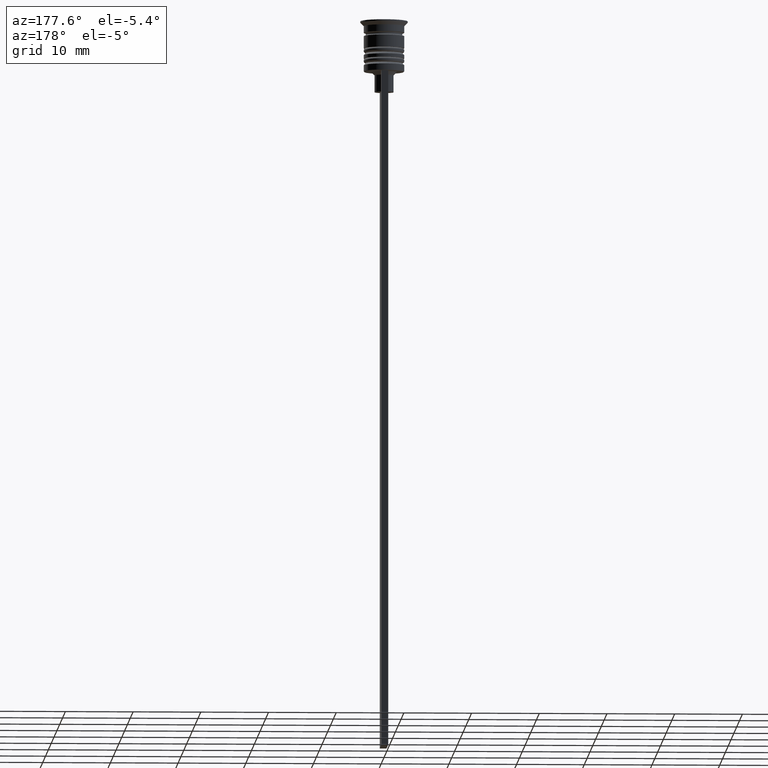
[diagram: clean part render]
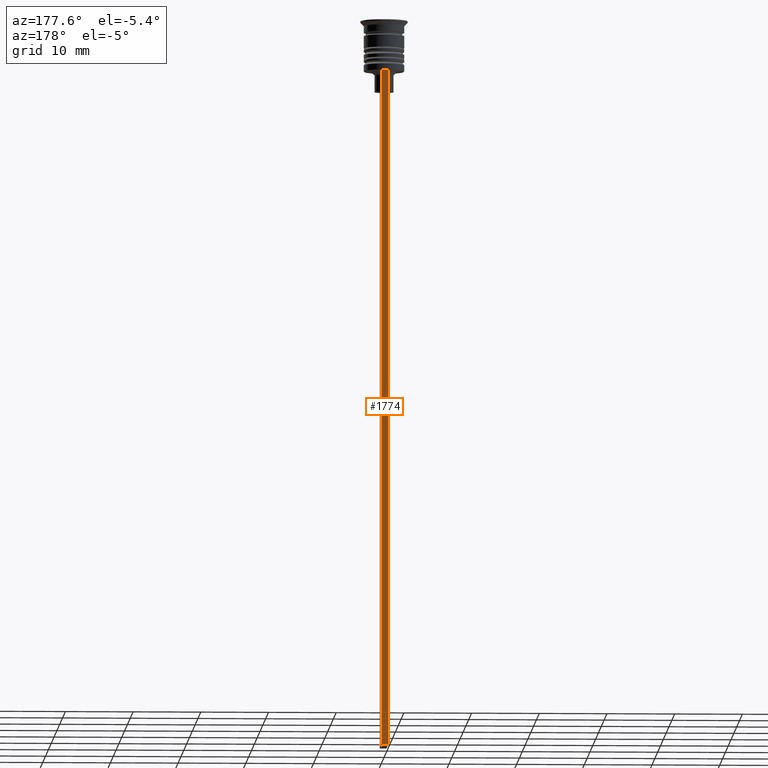
[diagram: same view with one face highlighted and labeled with its STEP entity id]
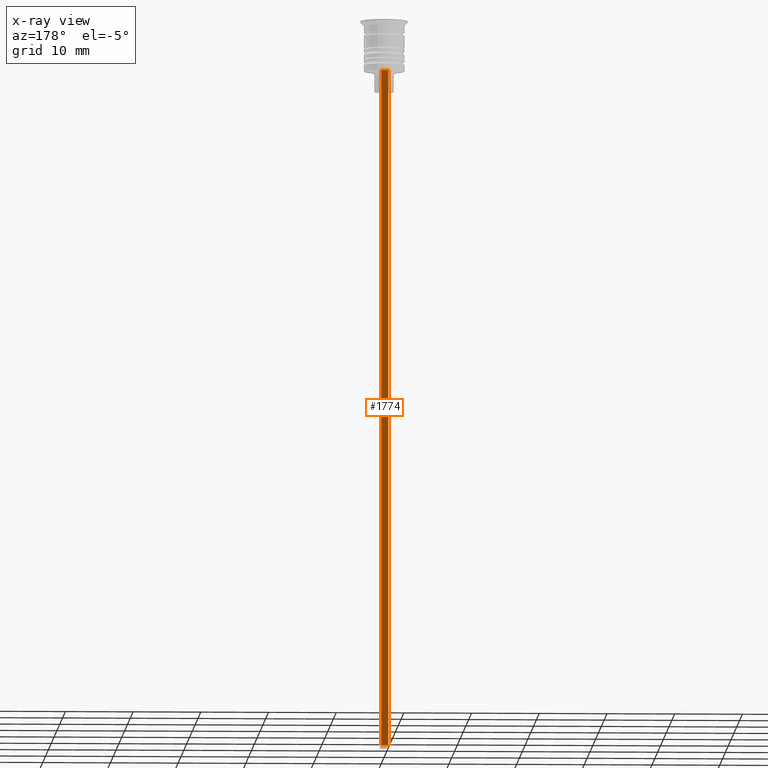
[diagram: x-ray of the same camera — body ghosted, the highlighted face saturated]
A machine part, auxiliary view. The second image highlights one B-rep face of the part: STEP entity #1774.
The next image is the same camera in x-ray: the body ghosted, the highlighted face saturated — about 0% of this face is hidden behind the body in this view.
In plain terms, the highlighted planar face has unit normal (0, -1, -0).
Its self-contained STEP definition (entity closure, byte-faithful):
#46 = DIRECTION ( 'NONE',  ( 0.000000000000000000, 0.000000000000000000, -1.000000000000000000 ) ) ;
#121 = DIRECTION ( 'NONE',  ( 0.000000000000000000, -1.000000000000000000, -0.000000000000000000 ) ) ;
#225 = VERTEX_POINT ( 'NONE', #751 ) ;
#342 = EDGE_CURVE ( 'NONE', #225, #631, #1138, .T. ) ;
#463 = DIRECTION ( 'NONE',  ( 0.000000000000000000, 0.000000000000000000, -1.000000000000000000 ) ) ;
#468 = VECTOR ( 'NONE', #1219, 1000.000000000000000 ) ;
#498 = LINE ( 'NONE', #2295, #468 ) ;
#631 = VERTEX_POINT ( 'NONE', #1802 ) ;
#651 = CARTESIAN_POINT ( 'NONE',  ( 0.4999999999999998890, 3.000000000000000000, -1.417237469701779329 ) ) ;
#689 = EDGE_LOOP ( 'NONE', ( #1512, #1228, #2098, #1782 ) ) ;
#751 = CARTESIAN_POINT ( 'NONE',  ( 0.4999999999999998890, 3.000000000000000000, -7.500000000000000000 ) ) ;
#813 = VERTEX_POINT ( 'NONE', #1006 ) ;
#816 = CARTESIAN_POINT ( 'NONE',  ( 0.4999999999999998890, 3.000000000000000000, -1.417237469701779329 ) ) ;
#833 = CARTESIAN_POINT ( 'NONE',  ( 0.4999999999999998890, 3.000000000000000000, -7.500000000000000000 ) ) ;
#940 = VERTEX_POINT ( 'NONE', #1176 ) ;
#1006 = CARTESIAN_POINT ( 'NONE',  ( -0.5000000000000001110, 3.000000000000000000, -7.500000000000000000 ) ) ;
#1138 = LINE ( 'NONE', #816, #1263 ) ;
#1176 = CARTESIAN_POINT ( 'NONE',  ( -0.5000000000000001110, 3.000000000000000000, -107.5000000000000000 ) ) ;
#1210 = PLANE ( 'NONE',  #1862 ) ;
#1219 = DIRECTION ( 'NONE',  ( -1.000000000000000000, 0.000000000000000000, 0.000000000000000000 ) ) ;
#1228 = ORIENTED_EDGE ( 'NONE', *, *, #2015, .T. ) ;
#1263 = VECTOR ( 'NONE', #46, 1000.000000000000000 ) ;
#1309 = VECTOR ( 'NONE', #1836, 1000.000000000000000 ) ;
#1419 = LINE ( 'NONE', #1599, #1309 ) ;
#1512 = ORIENTED_EDGE ( 'NONE', *, *, #1884, .F. ) ;
#1547 = DIRECTION ( 'NONE',  ( 1.000000000000000000, 0.000000000000000000, 0.000000000000000000 ) ) ;
#1599 = CARTESIAN_POINT ( 'NONE',  ( -0.5000000000000001110, 3.000000000000000000, -1.417237469701779329 ) ) ;
#1774 = ADVANCED_FACE ( 'NONE', ( #2076 ), #1210, .F. ) ;
#1782 = ORIENTED_EDGE ( 'NONE', *, *, #1992, .T. ) ;
#1802 = CARTESIAN_POINT ( 'NONE',  ( 0.4999999999999998890, 3.000000000000000000, -107.5000000000000000 ) ) ;
#1836 = DIRECTION ( 'NONE',  ( 0.000000000000000000, 0.000000000000000000, -1.000000000000000000 ) ) ;
#1862 = AXIS2_PLACEMENT_3D ( 'NONE', #651, #121, #463 ) ;
#1884 = EDGE_CURVE ( 'NONE', #813, #940, #1419, .T. ) ;
#1992 = EDGE_CURVE ( 'NONE', #631, #940, #498, .T. ) ;
#2015 = EDGE_CURVE ( 'NONE', #813, #225, #2093, .T. ) ;
#2076 = FACE_OUTER_BOUND ( 'NONE', #689, .T. ) ;
#2093 = LINE ( 'NONE', #833, #2194 ) ;
#2098 = ORIENTED_EDGE ( 'NONE', *, *, #342, .T. ) ;
#2194 = VECTOR ( 'NONE', #1547, 1000.000000000000000 ) ;
#2295 = CARTESIAN_POINT ( 'NONE',  ( 0.4999999999999998890, 3.000000000000000000, -107.5000000000000000 ) ) ;